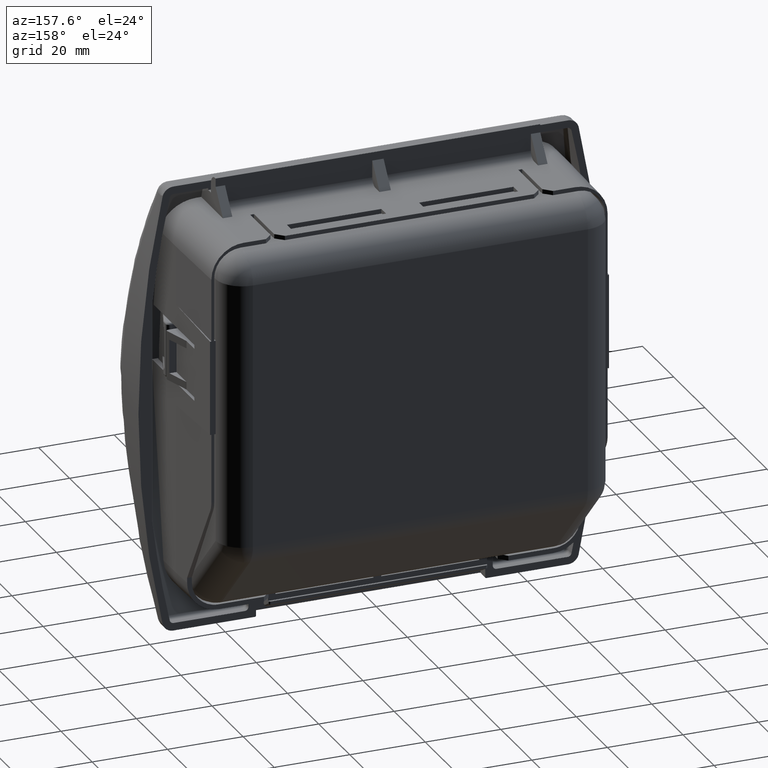
[diagram: clean part render]
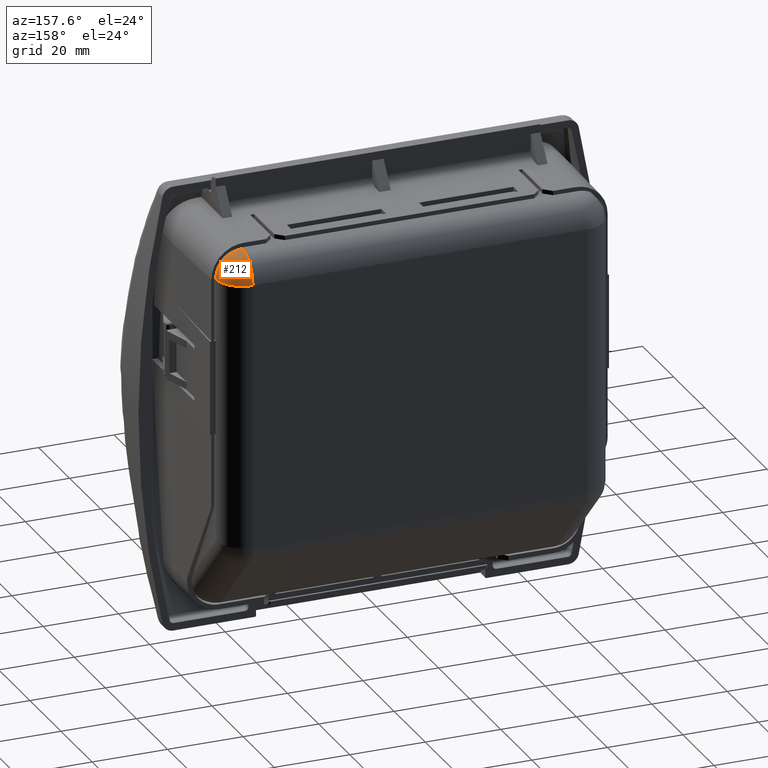
[diagram: same view with one face highlighted and labeled with its STEP entity id]
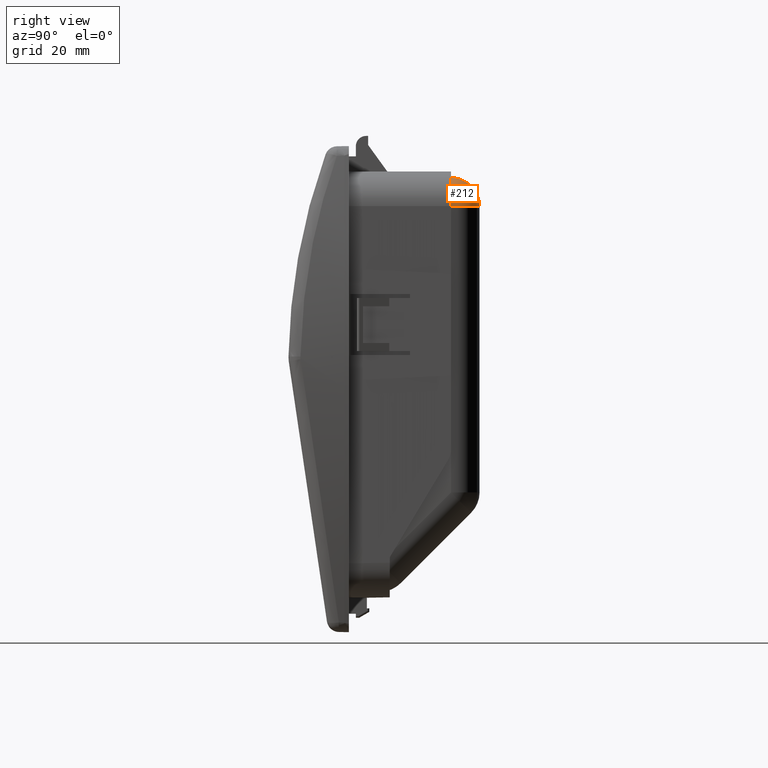
[diagram: same view with one face highlighted and labeled with its STEP entity id]
A machine part, auxiliary view. The second image highlights one B-rep face of the part: STEP entity #212.
A second angle (right view) of the same face is appended — the face is thin or edge-on in the first view.
In plain terms, the highlighted spherical surface has radius 7 mm.
Its self-contained STEP definition (entity closure, byte-faithful):
#212=ADVANCED_FACE('',(#1487),#1486,.T.);
#1486=SPHERICAL_SURFACE('',#8225,7.00000000000E+000);
#1487=FACE_OUTER_BOUND('',#8226,.T.);
#8222=CARTESIAN_POINT('',(4.43500000000E+001,3.00000000000E+001,4.33000000000E+001));
#8223=DIRECTION('',(-0.00000000000E+000,0.00000000000E+000,1.00000000000E+000));
#8224=DIRECTION('',(1.00000000000E+000,1.22460635382E-016,-0.00000000000E+000));
#8225=AXIS2_PLACEMENT_3D('',#8222,#8223,#8224);
#8226=EDGE_LOOP('',(#15354,#15355,#15356));
#15354=ORIENTED_EDGE('',*,*,#18821,.F.);
#15355=ORIENTED_EDGE('',*,*,#18819,.T.);
#15356=ORIENTED_EDGE('',*,*,#18822,.F.);
#18819=EDGE_CURVE('',#21702,#21781,#21782,.T.);
#18821=EDGE_CURVE('',#21702,#21542,#21794,.T.);
#18822=EDGE_CURVE('',#21542,#21781,#21800,.T.);
#21542=VERTEX_POINT('',#32881);
#21702=VERTEX_POINT('',#32994);
#21781=VERTEX_POINT('',#33044);
#21782=CIRCLE('',#33048,7.00000000000E+000);
#21794=CIRCLE('',#33055,7.00000000000E+000);
#21800=CIRCLE('',#33059,7.00000000000E+000);
#32881=CARTESIAN_POINT('',(4.43500000000E+001,3.00000000000E+001,5.03000000000E+001));
#32994=CARTESIAN_POINT('',(5.13500000000E+001,3.00000000000E+001,4.33000000000E+001));
#33044=CARTESIAN_POINT('',(4.43500000000E+001,3.70000000000E+001,4.33000000000E+001));
#33045=CARTESIAN_POINT('',(4.43500000000E+001,3.00000000000E+001,4.33000000000E+001));
#33046=DIRECTION('',(0.00000000000E+000,-0.00000000000E+000,1.00000000000E+000));
#33047=DIRECTION('',(1.00000000000E+000,-0.00000000000E+000,-0.00000000000E+000));
#33048=AXIS2_PLACEMENT_3D('',#33045,#33046,#33047);
#33052=CARTESIAN_POINT('',(4.43500000000E+001,3.00000000000E+001,4.33000000000E+001));
#33053=DIRECTION('',(0.00000000000E+000,-1.00000000000E+000,0.00000000000E+000));
#33054=DIRECTION('',(-0.00000000000E+000,-0.00000000000E+000,-1.00000000000E+000));
#33055=AXIS2_PLACEMENT_3D('',#33052,#33053,#33054);
#33056=CARTESIAN_POINT('',(4.43500000000E+001,3.00000000000E+001,4.33000000000E+001));
#33057=DIRECTION('',(-1.00000000000E+000,0.00000000000E+000,0.00000000000E+000));
#33058=DIRECTION('',(-0.00000000000E+000,-0.00000000000E+000,-1.00000000000E+000));
#33059=AXIS2_PLACEMENT_3D('',#33056,#33057,#33058);